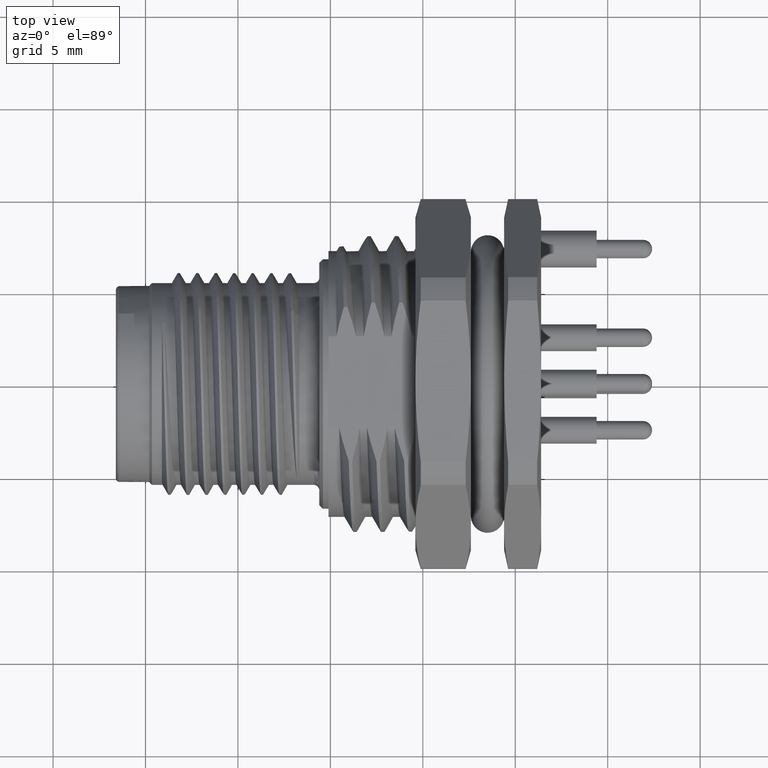
[diagram: clean part render]
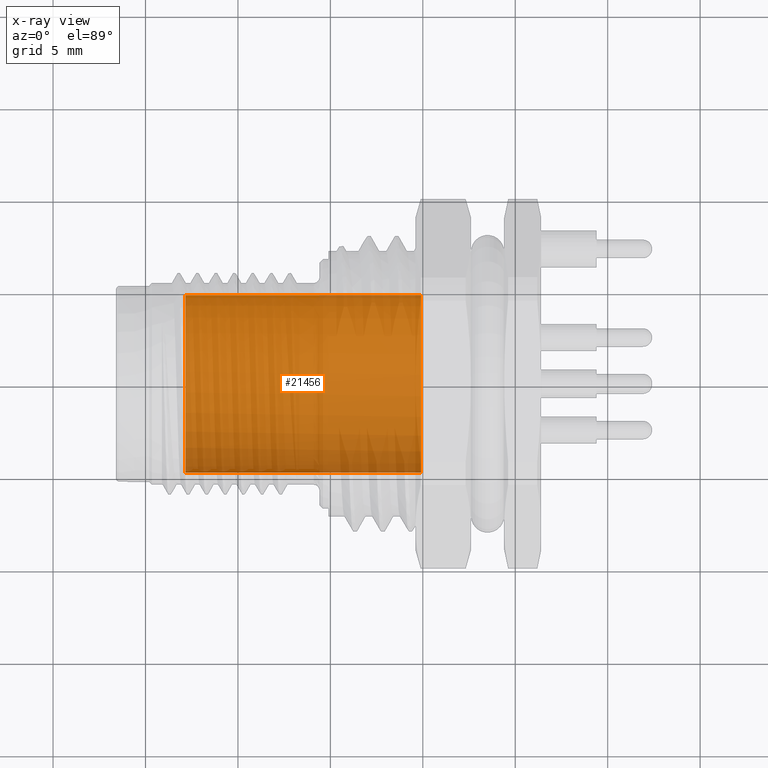
[diagram: x-ray — body ghosted, one internal face saturated and labeled with its STEP entity id]
A machine part, top view, then the same camera in x-ray: the body is ghosted and one INTERNAL B-rep face — a face not visible from any outside direction — is saturated and labeled: STEP entity #21456.
In plain terms, the highlighted cylindrical surface (partial cylindrical patch) has radius 4.8 mm, axis along (1, 0, 0).
Its self-contained STEP definition (entity closure, byte-faithful):
#21341=CARTESIAN_POINT('',(1.49E1,0.E0,0.E0));
#21342=DIRECTION('',(1.E0,0.E0,0.E0));
#21343=DIRECTION('',(0.E0,-1.E0,0.E0));
#21344=AXIS2_PLACEMENT_3D('',#21341,#21342,#21343);
#21346=CARTESIAN_POINT('',(2.157071421427E0,0.E0,0.E0));
#21347=DIRECTION('',(1.E0,0.E0,0.E0));
#21348=DIRECTION('',(0.E0,-7.071067811865E-1,-7.071067811865E-1));
#21349=AXIS2_PLACEMENT_3D('',#21346,#21347,#21348);
#21351=CARTESIAN_POINT('',(2.157071421427E0,0.E0,0.E0));
#21352=DIRECTION('',(1.E0,0.E0,0.E0));
#21353=DIRECTION('',(0.E0,-1.E0,0.E0));
#21354=AXIS2_PLACEMENT_3D('',#21351,#21352,#21353);
#21356=DIRECTION('',(-1.E0,0.E0,1.677696142623E-13));
#21357=VECTOR('',#21356,1.274292857857E1);
#21358=CARTESIAN_POINT('',(1.49E1,4.8E0,-2.518082797387E-12));
#21359=LINE('',#21358,#21357);
#21365=DIRECTION('',(1.E0,0.E0,0.E0));
#21366=VECTOR('',#21365,1.274292857857E1);
#21367=CARTESIAN_POINT('',(2.157071421427E0,-4.8E0,0.E0));
#21368=LINE('',#21367,#21366);
#21406=CARTESIAN_POINT('',(2.157071421427E0,-4.8E0,0.E0));
#21407=CARTESIAN_POINT('',(2.157071421427E0,-3.394112549695E0,
-3.394112549695E0));
#21408=VERTEX_POINT('',#21406);
#21409=VERTEX_POINT('',#21407);
#21410=CARTESIAN_POINT('',(2.157071421427E0,4.8E0,-3.801403636317E-13));
#21411=VERTEX_POINT('',#21410);
#21414=CARTESIAN_POINT('',(1.49E1,-4.8E0,0.E0));
#21415=CARTESIAN_POINT('',(1.49E1,4.8E0,-2.518922488957E-12));
#21416=VERTEX_POINT('',#21414);
#21417=VERTEX_POINT('',#21415);
#21440=CARTESIAN_POINT('',(-4.E-1,0.E0,0.E0));
#21441=DIRECTION('',(1.E0,0.E0,0.E0));
#21442=DIRECTION('',(0.E0,-1.E0,0.E0));
#21443=AXIS2_PLACEMENT_3D('',#21440,#21441,#21442);
#21444=CYLINDRICAL_SURFACE('',#21443,4.8E0);
#21446=ORIENTED_EDGE('',*,*,#21445,.T.);
#21448=ORIENTED_EDGE('',*,*,#21447,.T.);
#21450=ORIENTED_EDGE('',*,*,#21449,.T.);
#21451=ORIENTED_EDGE('',*,*,#21427,.F.);
#21453=ORIENTED_EDGE('',*,*,#21452,.F.);
#21454=EDGE_LOOP('',(#21446,#21448,#21450,#21451,#21453));
#21455=FACE_OUTER_BOUND('',#21454,.F.);
#21456=ADVANCED_FACE('',(#21455),#21444,.T.);
#21345=CIRCLE('',#21344,4.8E0);
#21350=CIRCLE('',#21349,4.8E0);
#21355=CIRCLE('',#21354,4.8E0);
#21427=EDGE_CURVE('',#21409,#21411,#21350,.T.);
#21445=EDGE_CURVE('',#21408,#21416,#21368,.T.);
#21447=EDGE_CURVE('',#21416,#21417,#21345,.T.);
#21449=EDGE_CURVE('',#21417,#21411,#21359,.T.);
#21452=EDGE_CURVE('',#21408,#21409,#21355,.T.);